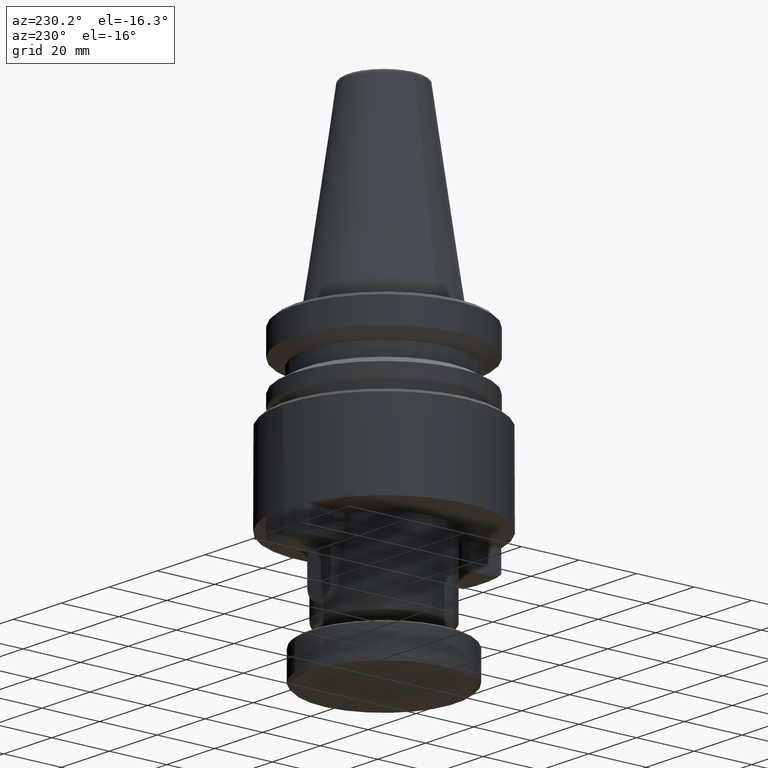
[diagram: clean part render]
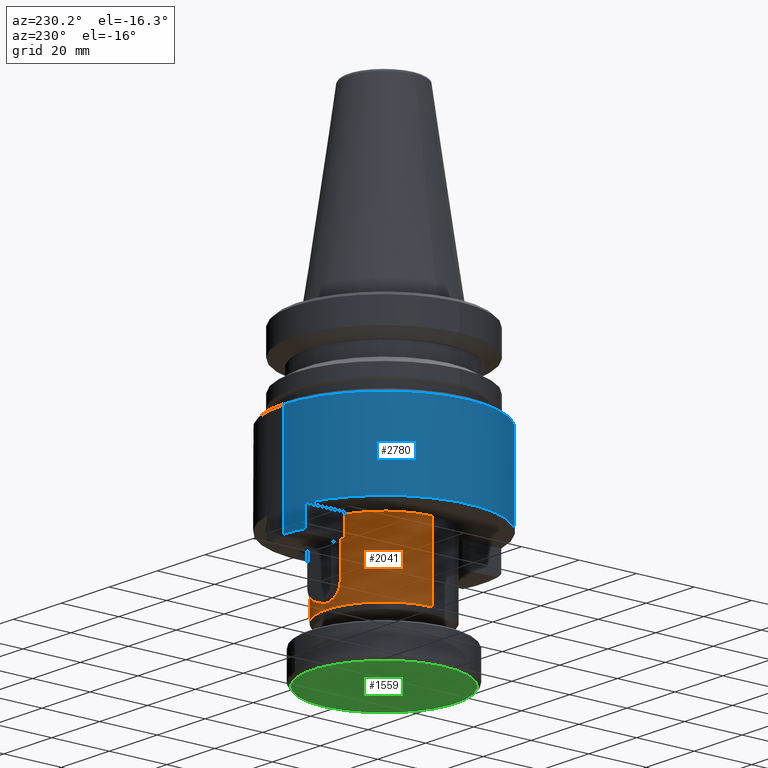
[diagram: same view with three faces highlighted in distinct colors, each labeled with its STEP entity id]
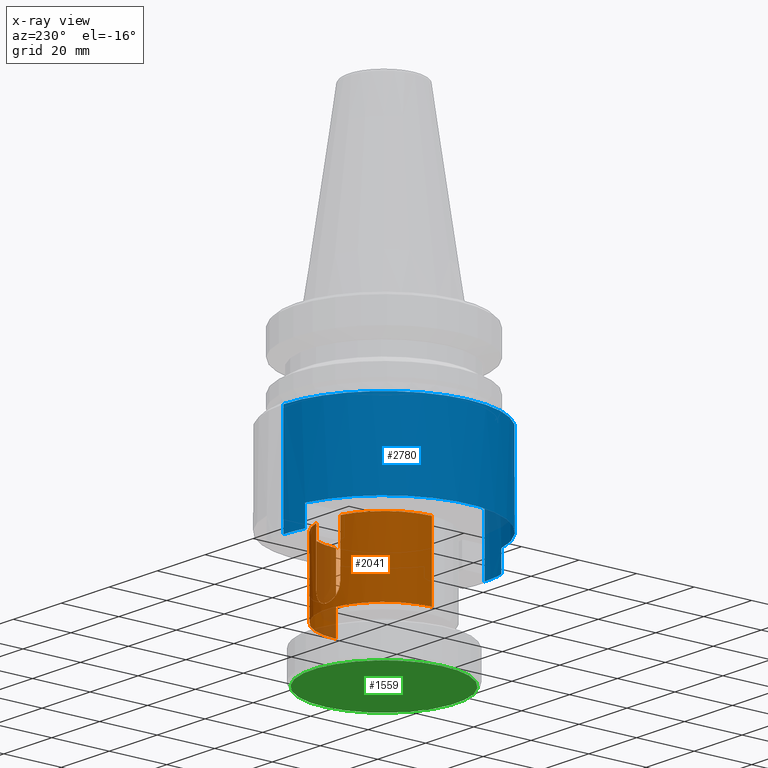
[diagram: x-ray of the same camera — body ghosted, the three highlighted faces saturated]
A machine part, auxiliary view with three faces highlighted in distinct colors.
The next image is the same camera in x-ray (body ghosted, the three faces saturated) — at least one of them is partly hidden behind the body in this view.
Their STEP definitions:

[orange] entity #2041 — the highlighted cylindrical surface (partial cylindrical patch) has radius 20 mm, axis along (-0, -0, -1).
#74 = VERTEX_POINT ( 'NONE', #2439 ) ;
#103 = DIRECTION ( 'NONE',  ( -1.000000000000000000, 0.0000000000000000000, 0.0000000000000000000 ) ) ;
#104 = VERTEX_POINT ( 'NONE', #3194 ) ;
#107 = DIRECTION ( 'NONE',  ( -0.0000000000000000000, -0.0000000000000000000, -1.000000000000000000 ) ) ;
#109 = CARTESIAN_POINT ( 'NONE',  ( 73.52171165756638500, 96.54903105188329000, 19.42724320429189400 ) ) ;
#189 = CARTESIAN_POINT ( 'NONE',  ( 68.54671165756639100, 115.9203855476329500, 1.695192396292520800 ) ) ;
#331 = DIRECTION ( 'NONE',  ( 0.0000000000000000000, 0.0000000000000000000, 1.000000000000000000 ) ) ;
#332 = CARTESIAN_POINT ( 'NONE',  ( 78.54671165756639100, 115.9074755916700500, 1.695192396292520800 ) ) ;
#339 = ORIENTED_EDGE ( 'NONE', *, *, #472, .F. ) ;
#366 = CARTESIAN_POINT ( 'NONE',  ( 73.52171165756638500, 96.54903105188329000, 44.69519239969249500 ) ) ;
#412 = AXIS2_PLACEMENT_3D ( 'NONE', #109, #107, #103 ) ;
#422 = CYLINDRICAL_SURFACE ( 'NONE', #2836, 20.00000000000000400 ) ;
#441 = CARTESIAN_POINT ( 'NONE',  ( 78.54671165756639100, 115.9074755916700500, 26.17019239629251700 ) ) ;
#443 = CARTESIAN_POINT ( 'NONE',  ( 78.54671165756641900, 115.9074755916700900, 25.83849691208560300 ) ) ;
#444 = CARTESIAN_POINT ( 'NONE',  ( 78.51332298887753300, 115.9162268070643300, 25.50649305371766900 ) ) ;
#448 = CARTESIAN_POINT ( 'NONE',  ( 78.38394388283417400, 115.9491123117631900, 24.86293980690004400 ) ) ;
#449 = CARTESIAN_POINT ( 'NONE',  ( 78.28866803330181800, 115.9730564040025200, 24.55138496306143000 ) ) ;
#452 = CARTESIAN_POINT ( 'NONE',  ( 78.03776502088351200, 116.0329191645678000, 23.94822762089662400 ) ) ;
#454 = CARTESIAN_POINT ( 'NONE',  ( 77.88058605423519500, 116.0691356749574700, 23.65559405340003000 ) ) ;
#459 = CARTESIAN_POINT ( 'NONE',  ( 77.51850826236284300, 116.1464769926579400, 23.11560505226281100 ) ) ;
#464 = CARTESIAN_POINT ( 'NONE',  ( 77.31253702126316800, 116.1878969587186000, 22.86477410716057100 ) ) ;
#469 = CARTESIAN_POINT ( 'NONE',  ( 76.84926085018233300, 116.2716786280944100, 22.40185064343332400 ) ) ;
#472 = EDGE_CURVE ( 'NONE', #2475, #74, #2186, .T. ) ;
#475 = CARTESIAN_POINT ( 'NONE',  ( 76.59531277224934300, 116.3133268762272100, 22.19381533806206300 ) ) ;
#479 = CARTESIAN_POINT ( 'NONE',  ( 76.05512358524663300, 116.3898031449507900, 21.83274927081648500 ) ) ;
#480 = CARTESIAN_POINT ( 'NONE',  ( 75.76451467600931300, 116.4252178704330900, 21.67694613300825100 ) ) ;
#482 = CARTESIAN_POINT ( 'NONE',  ( 75.15757582566854500, 116.4843493650918200, 21.42540274415227900 ) ) ;
#483 = CARTESIAN_POINT ( 'NONE',  ( 74.84528129126783800, 116.5077768514473200, 21.33067538926348000 ) ) ;
#486 = CARTESIAN_POINT ( 'NONE',  ( 74.20306398481537300, 116.5400072529852600, 21.20265683251346900 ) ) ;
#489 = CARTESIAN_POINT ( 'NONE',  ( 73.87030963396203700, 116.5486743780377200, 21.16993860093373300 ) ) ;
#490 = CARTESIAN_POINT ( 'NONE',  ( 73.21531771602204200, 116.5493654609657200, 21.17044923050539800 ) ) ;
#491 = CARTESIAN_POINT ( 'NONE',  ( 72.89006195777277200, 116.5416690786256700, 21.20256782050461200 ) ) ;
#492 = CARTESIAN_POINT ( 'NONE',  ( 72.40558657364297800, 116.5185178742815100, 21.29936554334511500 ) ) ;
#494 = CARTESIAN_POINT ( 'NONE',  ( 72.24449071661901200, 116.5088262492174100, 21.33996465730549700 ) ) ;
#506 = CARTESIAN_POINT ( 'NONE',  ( 71.93086307353158300, 116.4862805721704100, 21.43564777795863200 ) ) ;
#511 = CARTESIAN_POINT ( 'NONE',  ( 71.77737139427152600, 116.4733894832307600, 21.49088523376892100 ) ) ;
#512 = CARTESIAN_POINT ( 'NONE',  ( 71.32659789728776900, 116.4304948561223100, 21.67830895549999300 ) ) ;
#517 = CARTESIAN_POINT ( 'NONE',  ( 71.03768580500677400, 116.3960861205748200, 21.83282597521802200 ) ) ;
#521 = CARTESIAN_POINT ( 'NONE',  ( 70.49166203374822700, 116.3200901690135300, 22.19846355415266400 ) ) ;
#524 = CARTESIAN_POINT ( 'NONE',  ( 70.24085412115390200, 116.2794735856731900, 22.40499289647571100 ) ) ;
#525 = CARTESIAN_POINT ( 'NONE',  ( 69.78166729317153700, 116.1976049672029100, 22.86415817707842600 ) ) ;
#527 = CARTESIAN_POINT ( 'NONE',  ( 69.57148938055753700, 116.1559199739700700, 23.11993763945242700 ) ) ;
#529 = CARTESIAN_POINT ( 'NONE',  ( 69.20881373976369800, 116.0793475058335100, 23.66238700352854000 ) ) ;
#532 = CARTESIAN_POINT ( 'NONE',  ( 69.05521289652514800, 116.0443396807101900, 23.94900787358097800 ) ) ;
#533 = CARTESIAN_POINT ( 'NONE',  ( 68.80388927453698500, 115.9850497202675500, 24.55375877643565000 ) ) ;
#535 = CARTESIAN_POINT ( 'NONE',  ( 68.70715684801248800, 115.9609964724708800, 24.87196003256235200 ) ) ;
#536 = CARTESIAN_POINT ( 'NONE',  ( 68.57938654292614400, 115.9288597912061200, 25.51263690024902400 ) ) ;
#543 = CARTESIAN_POINT ( 'NONE',  ( 68.54671165756639100, 115.9203855476329500, 26.17019239629251400 ) ) ;
#545 = CARTESIAN_POINT ( 'NONE',  ( 68.54671165756640500, 115.9203855476329600, 25.83850772697147800 ) ) ;
#566 = CARTESIAN_POINT ( 'NONE',  ( 68.54671165756639100, 115.9203855476329500, 44.69519239969249500 ) ) ;
#609 = AXIS2_PLACEMENT_3D ( 'NONE', #366, #2226, #625 ) ;
#625 = DIRECTION ( 'NONE',  ( -1.000000000000000000, 0.0000000000000000000, 0.0000000000000000000 ) ) ;
#796 = VECTOR ( 'NONE', #2541, 1000.000000000000000 ) ;
#866 = CARTESIAN_POINT ( 'NONE',  ( 53.52171165756637800, 96.54903105188329000, 1.695192396292520800 ) ) ;
#875 = DIRECTION ( 'NONE',  ( -0.0000000000000000000, -0.0000000000000000000, -1.000000000000000000 ) ) ;
#878 = EDGE_CURVE ( 'NONE', #1357, #2057, #2891, .T. ) ;
#898 = LINE ( 'NONE', #332, #978 ) ;
#978 = VECTOR ( 'NONE', #331, 1000.000000000000000 ) ;
#1078 = LINE ( 'NONE', #189, #796 ) ;
#1241 = CIRCLE ( 'NONE', #412, 20.00000000000000400 ) ;
#1245 = FACE_OUTER_BOUND ( 'NONE', #2776, .T. ) ;
#1250 = ORIENTED_EDGE ( 'NONE', *, *, #1923, .T. ) ;
#1318 = ORIENTED_EDGE ( 'NONE', *, *, #878, .T. ) ;
#1331 = EDGE_CURVE ( 'NONE', #2475, #2964, #2472, .T. ) ;
#1357 = VERTEX_POINT ( 'NONE', #2708 ) ;
#1531 = CIRCLE ( 'NONE', #2630, 20.00000000000000400 ) ;
#1532 = VECTOR ( 'NONE', #875, 1000.000000000000000 ) ;
#1570 = CARTESIAN_POINT ( 'NONE',  ( 53.52171165756637800, 96.54903105188329000, 44.69519239969249500 ) ) ;
#1621 = ORIENTED_EDGE ( 'NONE', *, *, #1629, .F. ) ;
#1629 = EDGE_CURVE ( 'NONE', #2343, #2964, #1078, .T. ) ;
#1666 = DIRECTION ( 'NONE',  ( -0.0000000000000000000, -0.0000000000000000000, -1.000000000000000000 ) ) ;
#1693 = CARTESIAN_POINT ( 'NONE',  ( 68.54671165756639100, 115.9203855476329500, 26.17019239629251400 ) ) ;
#1888 = ORIENTED_EDGE ( 'NONE', *, *, #2977, .T. ) ;
#1923 = EDGE_CURVE ( 'NONE', #104, #1357, #1531, .T. ) ;
#2041 = ADVANCED_FACE ( 'NONE', ( #1245 ), #422, .T. ) ;
#2057 = VERTEX_POINT ( 'NONE', #2611 ) ;
#2186 = LINE ( 'NONE', #866, #1532 ) ;
#2192 = VERTEX_POINT ( 'NONE', #2468 ) ;
#2226 = DIRECTION ( 'NONE',  ( -0.0000000000000000000, -0.0000000000000000000, -1.000000000000000000 ) ) ;
#2318 = ORIENTED_EDGE ( 'NONE', *, *, #3303, .F. ) ;
#2343 = VERTEX_POINT ( 'NONE', #1693 ) ;
#2388 = ORIENTED_EDGE ( 'NONE', *, *, #3030, .T. ) ;
#2439 = CARTESIAN_POINT ( 'NONE',  ( 53.52171165756642100, 96.54903105188329000, 19.42724320429189400 ) ) ;
#2468 = CARTESIAN_POINT ( 'NONE',  ( 78.54671165756639100, 115.9074755916700500, 26.17019239629251700 ) ) ;
#2472 = CIRCLE ( 'NONE', #609, 20.00000000000000400 ) ;
#2475 = VERTEX_POINT ( 'NONE', #1570 ) ;
#2541 = DIRECTION ( 'NONE',  ( 0.0000000000000000000, 0.0000000000000000000, 1.000000000000000000 ) ) ;
#2611 = CARTESIAN_POINT ( 'NONE',  ( 93.52171165756634300, 96.54903105188329000, 19.42724320429189400 ) ) ;
#2630 = AXIS2_PLACEMENT_3D ( 'NONE', #2811, #2809, #2808 ) ;
#2631 = DIRECTION ( 'NONE',  ( -0.0000000000000000000, -0.0000000000000000000, -1.000000000000000000 ) ) ;
#2637 = CARTESIAN_POINT ( 'NONE',  ( 73.52171165756638500, 96.54903105188329000, 1.695192396292520800 ) ) ;
#2708 = CARTESIAN_POINT ( 'NONE',  ( 93.52171165756638500, 96.54903105188329000, 44.69519239969249500 ) ) ;
#2714 = DIRECTION ( 'NONE',  ( -1.000000000000000000, 0.0000000000000000000, 0.0000000000000000000 ) ) ;
#2776 = EDGE_LOOP ( 'NONE', ( #1250, #1318, #2318, #339, #2856, #1621, #1888, #2388 ) ) ;
#2791 = VECTOR ( 'NONE', #1666, 1000.000000000000000 ) ;
#2808 = DIRECTION ( 'NONE',  ( -1.000000000000000000, 0.0000000000000000000, 0.0000000000000000000 ) ) ;
#2809 = DIRECTION ( 'NONE',  ( -0.0000000000000000000, -0.0000000000000000000, -1.000000000000000000 ) ) ;
#2811 = CARTESIAN_POINT ( 'NONE',  ( 73.52171165756638500, 96.54903105188329000, 44.69519239969249500 ) ) ;
#2836 = AXIS2_PLACEMENT_3D ( 'NONE', #2637, #2631, #2714 ) ;
#2856 = ORIENTED_EDGE ( 'NONE', *, *, #1331, .T. ) ;
#2891 = LINE ( 'NONE', #3185, #2791 ) ;
#2964 = VERTEX_POINT ( 'NONE', #566 ) ;
#2977 = EDGE_CURVE ( 'NONE', #2343, #2192, #3324, .T. ) ;
#3030 = EDGE_CURVE ( 'NONE', #2192, #104, #898, .T. ) ;
#3185 = CARTESIAN_POINT ( 'NONE',  ( 93.52171165756638500, 96.54903105188329000, 1.695192396292520800 ) ) ;
#3194 = CARTESIAN_POINT ( 'NONE',  ( 78.54671165756639100, 115.9074755916700500, 44.69519239969249500 ) ) ;
#3303 = EDGE_CURVE ( 'NONE', #74, #2057, #1241, .T. ) ;
#3324 = B_SPLINE_CURVE_WITH_KNOTS ( 'NONE', 3,
 ( #543, #545, #536, #535, #533, #532, #529, #527, #525, #524, #521, #517, #512, #511, #506, #494, #492, #491, #490, #489, #486, #483, #482, #480, #479, #475, #469, #464, #459, #454, #452, #449, #448, #444, #443, #441 ),
 .UNSPECIFIED., .F., .F.,
 ( 4, 2, 2, 2, 2, 2, 2, 2, 2, 2, 2, 2, 2, 2, 2, 2, 2, 4 ),
 ( 3.469446951953614200E-018, 0.0009806146501529194400, 0.001961229300305835400, 0.002941843950458751200, 0.003922458600611667400, 0.004903073250764583600, 0.005883687900917498900, 0.006373995225993940100, 0.006864302551070380400, 0.007844917201223220200, 0.008825531851376059200, 0.009806146501528898200, 0.01078676115168173700, 0.01176737580183457600, 0.01274799045198741500, 0.01372860510214025600, 0.01470921975229309500, 0.01568983440244593400 ),
 .UNSPECIFIED. ) ;

[blue] entity #2780 — the highlighted cylindrical surface (partial cylindrical patch) has radius 35 mm, axis along (0, -0, 1).
#60 = LINE ( 'NONE', #2545, #3193 ) ;
#98 = EDGE_LOOP ( 'NONE', ( #421, #2227, #2926, #2939, #1539, #1408, #1885, #813, #3196 ) ) ;
#178 = VECTOR ( 'NONE', #1438, 1000.000000000000000 ) ;
#185 = LINE ( 'NONE', #1442, #178 ) ;
#195 = DIRECTION ( 'NONE',  ( 0.0000000000000000000, -2.478176394252581700E-017, 1.000000000000000000 ) ) ;
#199 = AXIS2_PLACEMENT_3D ( 'NONE', #1217, #1211, #1202 ) ;
#214 = CARTESIAN_POINT ( 'NONE',  ( 73.52171165756638500, 61.54903105188329000, 37.49519239629250900 ) ) ;
#352 = CIRCLE ( 'NONE', #2392, 35.00000000000000000 ) ;
#353 = VERTEX_POINT ( 'NONE', #2264 ) ;
#378 = LINE ( 'NONE', #214, #2626 ) ;
#420 = CIRCLE ( 'NONE', #199, 35.00000000000000000 ) ;
#421 = ORIENTED_EDGE ( 'NONE', *, *, #2102, .F. ) ;
#485 = AXIS2_PLACEMENT_3D ( 'NONE', #1796, #195, #2060 ) ;
#591 = DIRECTION ( 'NONE',  ( 0.0000000000000000000, -1.000000000000000000, 0.0000000000000000000 ) ) ;
#598 = DIRECTION ( 'NONE',  ( 0.0000000000000000000, -2.478176394252581700E-017, 1.000000000000000000 ) ) ;
#600 = CARTESIAN_POINT ( 'NONE',  ( 73.52171165756638500, 96.54903105188329000, 37.49519239629250900 ) ) ;
#622 = LINE ( 'NONE', #1013, #705 ) ;
#633 = FACE_OUTER_BOUND ( 'NONE', #98, .T. ) ;
#667 = CYLINDRICAL_SURFACE ( 'NONE', #2161, 35.00000000000000000 ) ;
#682 = VERTEX_POINT ( 'NONE', #2606 ) ;
#705 = VECTOR ( 'NONE', #1012, 1000.000000000000000 ) ;
#761 = CIRCLE ( 'NONE', #2971, 35.00000000000000000 ) ;
#813 = ORIENTED_EDGE ( 'NONE', *, *, #2685, .T. ) ;
#916 = EDGE_CURVE ( 'NONE', #1704, #1899, #1583, .T. ) ;
#976 = EDGE_CURVE ( 'NONE', #1899, #1730, #378, .T. ) ;
#1012 = DIRECTION ( 'NONE',  ( 0.0000000000000000000, -2.478176394252581700E-017, 1.000000000000000000 ) ) ;
#1013 = CARTESIAN_POINT ( 'NONE',  ( 65.52171165806596800, 130.6224811268022600, 37.49519239629250900 ) ) ;
#1074 = DIRECTION ( 'NONE',  ( 0.0000000000000000000, -2.478176394252581700E-017, 1.000000000000000000 ) ) ;
#1098 = CARTESIAN_POINT ( 'NONE',  ( 73.52171165756638500, 96.54903105188329000, 37.49519239629250900 ) ) ;
#1106 = DIRECTION ( 'NONE',  ( 0.0000000000000000000, -1.000000000000000000, 0.0000000000000000000 ) ) ;
#1202 = DIRECTION ( 'NONE',  ( -1.000000000000000000, 0.0000000000000000000, 0.0000000000000000000 ) ) ;
#1207 = VERTEX_POINT ( 'NONE', #3115 ) ;
#1211 = DIRECTION ( 'NONE',  ( -0.0000000000000000000, -0.0000000000000000000, -1.000000000000000000 ) ) ;
#1217 = CARTESIAN_POINT ( 'NONE',  ( 73.52171165756638500, 96.54903105188329000, 73.69519239645546800 ) ) ;
#1276 = DIRECTION ( 'NONE',  ( 0.0000000000000000000, -1.000000000000000000, 0.0000000000000000000 ) ) ;
#1278 = DIRECTION ( 'NONE',  ( 0.0000000000000000000, -2.478176394252581700E-017, 1.000000000000000000 ) ) ;
#1282 = CARTESIAN_POINT ( 'NONE',  ( 73.52171165756638500, 96.54903105188329000, 44.69519239799250000 ) ) ;
#1408 = ORIENTED_EDGE ( 'NONE', *, *, #916, .T. ) ;
#1438 = DIRECTION ( 'NONE',  ( -0.0000000000000000000, 2.478176394252581700E-017, -1.000000000000000000 ) ) ;
#1442 = CARTESIAN_POINT ( 'NONE',  ( 65.52171165733393800, 62.47558097713622500, 37.49519239629250900 ) ) ;
#1539 = ORIENTED_EDGE ( 'NONE', *, *, #2525, .T. ) ;
#1583 = CIRCLE ( 'NONE', #485, 35.00000000000000000 ) ;
#1704 = VERTEX_POINT ( 'NONE', #2342 ) ;
#1730 = VERTEX_POINT ( 'NONE', #3055 ) ;
#1796 = CARTESIAN_POINT ( 'NONE',  ( 73.52171165756638500, 96.54903105188329000, 37.49519239645444900 ) ) ;
#1822 = DIRECTION ( 'NONE',  ( 0.0000000000000000000, -2.478176394252581700E-017, 1.000000000000000000 ) ) ;
#1832 = AXIS2_PLACEMENT_3D ( 'NONE', #2622, #2617, #2616 ) ;
#1867 = VERTEX_POINT ( 'NONE', #2902 ) ;
#1885 = ORIENTED_EDGE ( 'NONE', *, *, #976, .T. ) ;
#1899 = VERTEX_POINT ( 'NONE', #2855 ) ;
#2038 = EDGE_CURVE ( 'NONE', #1207, #353, #2817, .T. ) ;
#2060 = DIRECTION ( 'NONE',  ( 0.0000000000000000000, -1.000000000000000000, 0.0000000000000000000 ) ) ;
#2062 = VERTEX_POINT ( 'NONE', #2563 ) ;
#2102 = EDGE_CURVE ( 'NONE', #2062, #353, #60, .T. ) ;
#2161 = AXIS2_PLACEMENT_3D ( 'NONE', #1098, #1074, #1106 ) ;
#2227 = ORIENTED_EDGE ( 'NONE', *, *, #2921, .T. ) ;
#2262 = VERTEX_POINT ( 'NONE', #2400 ) ;
#2264 = CARTESIAN_POINT ( 'NONE',  ( 73.52171165756638500, 131.5490310518833000, 73.69519239645546800 ) ) ;
#2342 = CARTESIAN_POINT ( 'NONE',  ( 65.52171165739505900, 62.47558097700731800, 37.49519239648500200 ) ) ;
#2392 = AXIS2_PLACEMENT_3D ( 'NONE', #1282, #1278, #1276 ) ;
#2400 = CARTESIAN_POINT ( 'NONE',  ( 65.52171165826678100, 130.6224811268336600, 44.69519239714250600 ) ) ;
#2525 = EDGE_CURVE ( 'NONE', #1867, #1704, #185, .T. ) ;
#2538 = DIRECTION ( 'NONE',  ( 0.0000000000000000000, -2.478176394252581700E-017, 1.000000000000000000 ) ) ;
#2545 = CARTESIAN_POINT ( 'NONE',  ( 73.52171165756638500, 131.5490310518833000, 37.49519239629250900 ) ) ;
#2563 = CARTESIAN_POINT ( 'NONE',  ( 73.52171165756638500, 131.5490310518833000, 37.49519239629250900 ) ) ;
#2585 = EDGE_CURVE ( 'NONE', #2262, #1867, #352, .T. ) ;
#2606 = CARTESIAN_POINT ( 'NONE',  ( 65.52171165786380400, 130.6224811265407500, 37.49519239608415700 ) ) ;
#2616 = DIRECTION ( 'NONE',  ( -1.000000000000000000, 0.0000000000000000000, 0.0000000000000000000 ) ) ;
#2617 = DIRECTION ( 'NONE',  ( -0.0000000000000000000, -0.0000000000000000000, -1.000000000000000000 ) ) ;
#2622 = CARTESIAN_POINT ( 'NONE',  ( 73.52171165756638500, 96.54903105188329000, 73.69519239645546800 ) ) ;
#2626 = VECTOR ( 'NONE', #1822, 1000.000000000000000 ) ;
#2685 = EDGE_CURVE ( 'NONE', #1730, #1207, #420, .T. ) ;
#2780 = ADVANCED_FACE ( 'NONE', ( #633 ), #667, .T. ) ;
#2817 = CIRCLE ( 'NONE', #1832, 35.00000000000000000 ) ;
#2853 = EDGE_CURVE ( 'NONE', #682, #2262, #622, .T. ) ;
#2855 = CARTESIAN_POINT ( 'NONE',  ( 73.52171165756638500, 61.54903105188329000, 37.49519239645444900 ) ) ;
#2902 = CARTESIAN_POINT ( 'NONE',  ( 65.52171165750826300, 62.47558097710894000, 44.69519239708694900 ) ) ;
#2921 = EDGE_CURVE ( 'NONE', #2062, #682, #761, .T. ) ;
#2926 = ORIENTED_EDGE ( 'NONE', *, *, #2853, .T. ) ;
#2939 = ORIENTED_EDGE ( 'NONE', *, *, #2585, .T. ) ;
#2971 = AXIS2_PLACEMENT_3D ( 'NONE', #600, #598, #591 ) ;
#3055 = CARTESIAN_POINT ( 'NONE',  ( 73.52171165756638500, 61.54903105188329000, 73.69519239645546800 ) ) ;
#3115 = CARTESIAN_POINT ( 'NONE',  ( 38.52171165772985300, 96.54903105188329000, 73.69519239645546800 ) ) ;
#3193 = VECTOR ( 'NONE', #2538, 1000.000000000000000 ) ;
#3196 = ORIENTED_EDGE ( 'NONE', *, *, #2038, .T. ) ;

[green] entity #1559 — the highlighted planar face has unit normal (0, 0, 1).
#176 = DIRECTION ( 'NONE',  ( 0.0000000000000000000, 0.0000000000000000000, 1.000000000000000000 ) ) ;
#574 = DIRECTION ( 'NONE',  ( -0.9612337495071684400, 0.2757347979642582600, 0.0000000000000000000 ) ) ;
#575 = DIRECTION ( 'NONE',  ( 0.0000000000000000000, -0.0000000000000000000, 1.000000000000000000 ) ) ;
#579 = CARTESIAN_POINT ( 'NONE',  ( 73.52171165756638500, 96.54903105188329000, 1.695192396292521300 ) ) ;
#750 = CIRCLE ( 'NONE', #3131, 25.00000000000005300 ) ;
#889 = CIRCLE ( 'NONE', #3146, 25.00000000000005300 ) ;
#1449 = FACE_OUTER_BOUND ( 'NONE', #2852, .T. ) ;
#1559 = ADVANCED_FACE ( 'NONE', ( #1449 ), #2528, .F. ) ;
#1590 = CARTESIAN_POINT ( 'NONE',  ( 49.49086791988711600, 103.4424010009897500, 1.695192396292521300 ) ) ;
#2040 = DIRECTION ( 'NONE',  ( -0.9612337495071684400, 0.2757347979642579800, 0.0000000000000000000 ) ) ;
#2086 = VERTEX_POINT ( 'NONE', #2550 ) ;
#2126 = EDGE_CURVE ( 'NONE', #2459, #2086, #889, .T. ) ;
#2441 = ORIENTED_EDGE ( 'NONE', *, *, #2126, .F. ) ;
#2459 = VERTEX_POINT ( 'NONE', #1590 ) ;
#2502 = DIRECTION ( 'NONE',  ( -0.9612337495071684400, 0.2757347979642582600, 0.0000000000000000000 ) ) ;
#2503 = DIRECTION ( 'NONE',  ( 0.0000000000000000000, -0.0000000000000000000, 1.000000000000000000 ) ) ;
#2505 = CARTESIAN_POINT ( 'NONE',  ( 73.52171165756638500, 96.54903105188329000, 1.695192396292521300 ) ) ;
#2528 = PLANE ( 'NONE',  #2806 ) ;
#2550 = CARTESIAN_POINT ( 'NONE',  ( 97.55255539524564800, 89.65566110277683300, 1.695192396292521300 ) ) ;
#2767 = CARTESIAN_POINT ( 'NONE',  ( 91.36003508065182600, 106.4346114320836000, 1.695192396292500400 ) ) ;
#2806 = AXIS2_PLACEMENT_3D ( 'NONE', #2767, #176, #2040 ) ;
#2852 = EDGE_LOOP ( 'NONE', ( #2441, #2930 ) ) ;
#2930 = ORIENTED_EDGE ( 'NONE', *, *, #2933, .F. ) ;
#2933 = EDGE_CURVE ( 'NONE', #2086, #2459, #750, .T. ) ;
#3131 = AXIS2_PLACEMENT_3D ( 'NONE', #579, #575, #574 ) ;
#3146 = AXIS2_PLACEMENT_3D ( 'NONE', #2505, #2503, #2502 ) ;